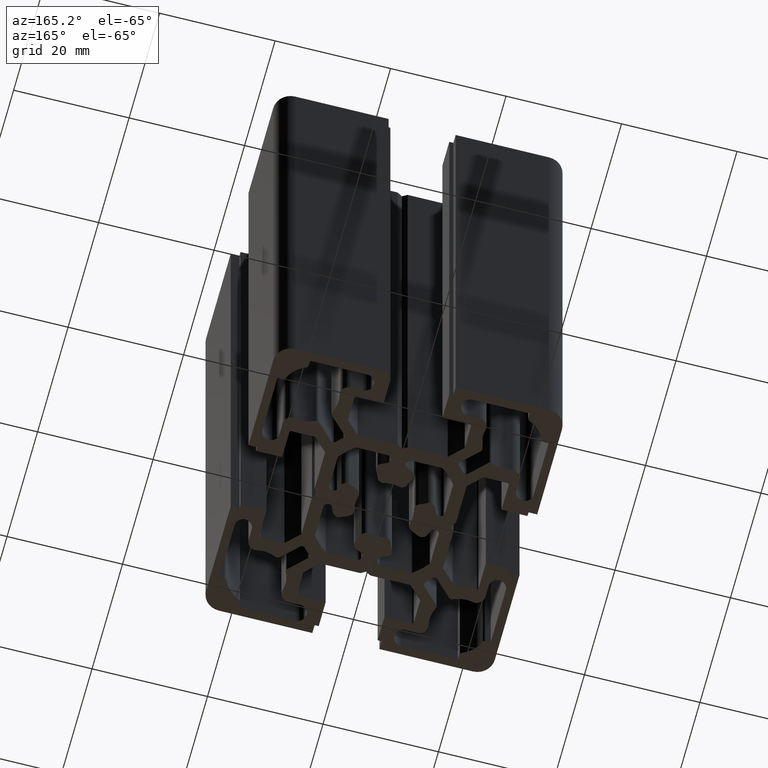
[diagram: clean part render]
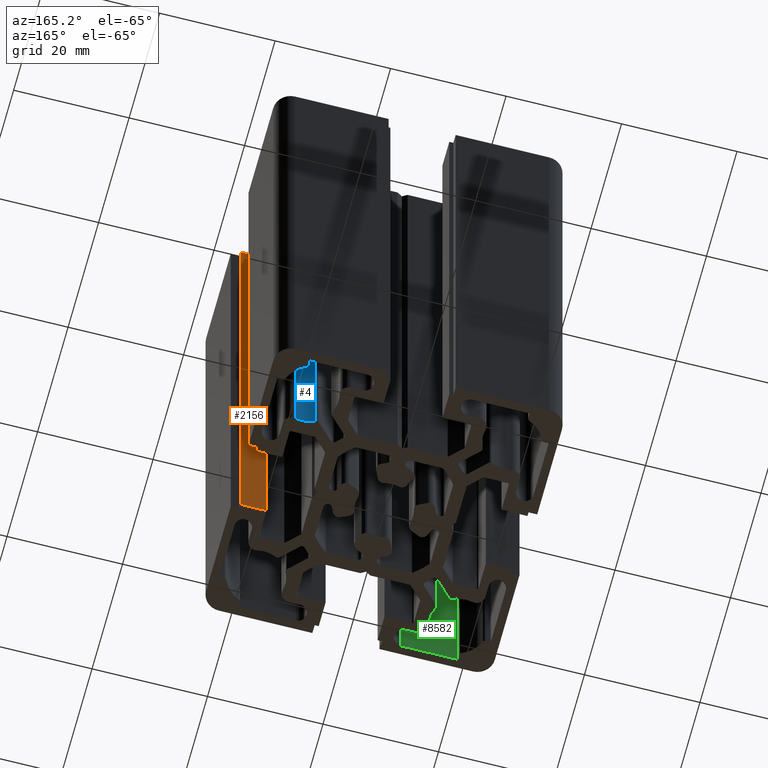
[diagram: same view with three faces highlighted in distinct colors, each labeled with its STEP entity id]
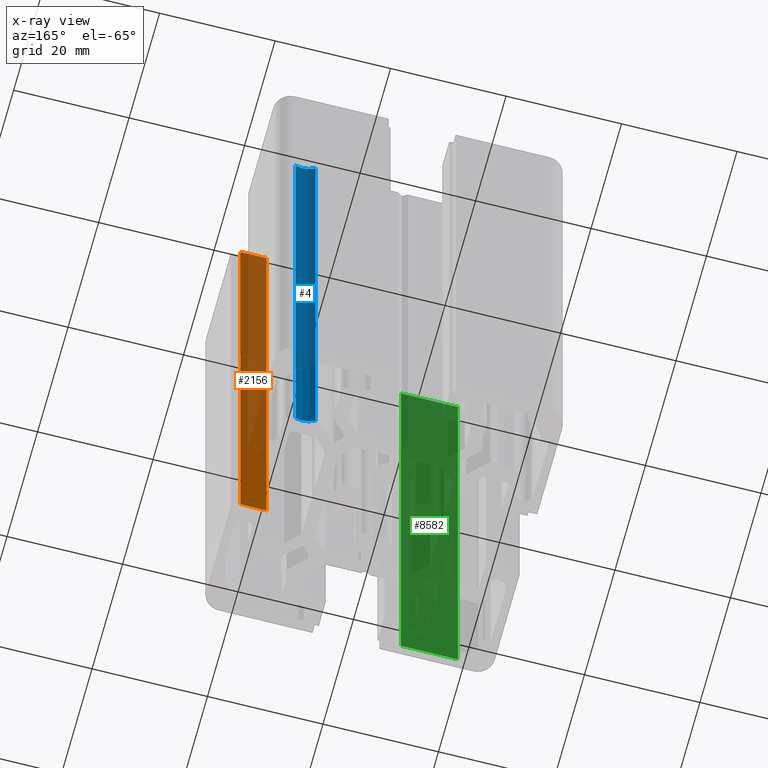
[diagram: x-ray of the same camera — body ghosted, the three highlighted faces saturated]
A machine part, auxiliary view with three faces highlighted in distinct colors.
The next image is the same camera in x-ray (body ghosted, the three faces saturated) — at least one of them is partly hidden behind the body in this view.
Their STEP definitions:

[orange] entity #2156 — the highlighted planar face has unit normal (-0, -1, 0).
#779 = VERTEX_POINT ( 'NONE', #4374 ) ;
#788 = EDGE_CURVE ( 'NONE', #789, #779, #4356, .T. ) ;
#789 = VERTEX_POINT ( 'NONE', #4358 ) ;
#1465 = VERTEX_POINT ( 'NONE', #5616 ) ;
#1520 = EDGE_CURVE ( 'NONE', #1465, #1528, #5689, .T. ) ;
#1528 = VERTEX_POINT ( 'NONE', #5692 ) ;
#2154 = EDGE_CURVE ( 'NONE', #779, #1528, #5795, .T. ) ;
#2155 = ORIENTED_EDGE ( 'NONE', *, *, #2154, .F. ) ;
#2156 = ADVANCED_FACE ( 'NONE', ( #6720 ), #6709, .F. ) ;
#2158 = ORIENTED_EDGE ( 'NONE', *, *, #1520, .T. ) ;
#2160 = ORIENTED_EDGE ( 'NONE', *, *, #2173, .T. ) ;
#2161 = ORIENTED_EDGE ( 'NONE', *, *, #788, .F. ) ;
#2173 = EDGE_CURVE ( 'NONE', #789, #1465, #6740, .T. ) ;
#2178 = EDGE_LOOP ( 'NONE', ( #2158, #2155, #2161, #2160 ) ) ;
#4353 = DIRECTION ( 'NONE',  ( -1.000000000000000000, 3.854941057726237600E-016, -0.0000000000000000000 ) ) ;
#4354 = VECTOR ( 'NONE', #4353, 1000.000000000000000 ) ;
#4355 = CARTESIAN_POINT ( 'NONE',  ( 19.00000000000000000, -5.099999999999999600, 100.0000000000000000 ) ) ;
#4356 = LINE ( 'NONE', #4355, #4354 ) ;
#4358 = CARTESIAN_POINT ( 'NONE',  ( 23.50000000000000000, -5.100000000000001400, 100.0000000000000000 ) ) ;
#4374 = CARTESIAN_POINT ( 'NONE',  ( 19.00000000000000000, -5.099999999999999600, 100.0000000000000000 ) ) ;
#5337 = DIRECTION ( 'NONE',  ( -3.854941057726238100E-016, -1.000000000000000000, 0.0000000000000000000 ) ) ;
#5351 = DIRECTION ( 'NONE',  ( 1.000000000000000000, -3.854941057726238100E-016, 0.0000000000000000000 ) ) ;
#5616 = CARTESIAN_POINT ( 'NONE',  ( 23.50000000000000000, -5.100000000000001400, 0.0000000000000000000 ) ) ;
#5683 = DIRECTION ( 'NONE',  ( -1.000000000000000000, 3.854941057726237600E-016, -0.0000000000000000000 ) ) ;
#5684 = VECTOR ( 'NONE', #5683, 1000.000000000000000 ) ;
#5685 = CARTESIAN_POINT ( 'NONE',  ( 19.00000000000000000, -5.099999999999999600, 0.0000000000000000000 ) ) ;
#5689 = LINE ( 'NONE', #5685, #5684 ) ;
#5692 = CARTESIAN_POINT ( 'NONE',  ( 19.00000000000000000, -5.099999999999999600, 0.0000000000000000000 ) ) ;
#5761 = CARTESIAN_POINT ( 'NONE',  ( 19.00000000000000000, -5.099999999999999600, 100.0000000000000000 ) ) ;
#5787 = VECTOR ( 'NONE', #5796, 1000.000000000000000 ) ;
#5795 = LINE ( 'NONE', #5761, #5787 ) ;
#5796 = DIRECTION ( 'NONE',  ( -0.0000000000000000000, -0.0000000000000000000, -1.000000000000000000 ) ) ;
#6704 = AXIS2_PLACEMENT_3D ( 'NONE', #6710, #5337, #5351 ) ;
#6709 = PLANE ( 'NONE',  #6704 ) ;
#6710 = CARTESIAN_POINT ( 'NONE',  ( 19.00000000000000000, -5.099999999999999600, 100.0000000000000000 ) ) ;
#6720 = FACE_OUTER_BOUND ( 'NONE', #2178, .T. ) ;
#6737 = DIRECTION ( 'NONE',  ( -0.0000000000000000000, -0.0000000000000000000, -1.000000000000000000 ) ) ;
#6738 = VECTOR ( 'NONE', #6737, 1000.000000000000000 ) ;
#6739 = CARTESIAN_POINT ( 'NONE',  ( 23.50000000000000000, -5.100000000000001400, 100.0000000000000000 ) ) ;
#6740 = LINE ( 'NONE', #6739, #6738 ) ;

[blue] entity #4 — the highlighted cylindrical surface (edge-blend (fillet) strip) has radius 5 mm, axis along (-0, -0, -1).
#4 = ADVANCED_FACE ( 'NONE', ( #3080 ), #3085, .F. ) ;
#7 = ORIENTED_EDGE ( 'NONE', *, *, #13, .T. ) ;
#13 = EDGE_CURVE ( 'NONE', #984, #1708, #94, .T. ) ;
#22 = ORIENTED_EDGE ( 'NONE', *, *, #980, .T. ) ;
#23 = ORIENTED_EDGE ( 'NONE', *, *, #1710, .F. ) ;
#92 = VECTOR ( 'NONE', #347, 1000.000000000000000 ) ;
#93 = CARTESIAN_POINT ( 'NONE',  ( 18.65384615384613200, 12.63495744589482900, 100.0000000000000000 ) ) ;
#94 = LINE ( 'NONE', #93, #92 ) ;
#170 = ORIENTED_EDGE ( 'NONE', *, *, #172, .F. ) ;
#171 = EDGE_LOOP ( 'NONE', ( #23, #170, #22, #7 ) ) ;
#172 = EDGE_CURVE ( 'NONE', #982, #1680, #3314, .T. ) ;
#347 = DIRECTION ( 'NONE',  ( -0.0000000000000000000, -0.0000000000000000000, -1.000000000000000000 ) ) ;
#980 = EDGE_CURVE ( 'NONE', #982, #984, #4704, .T. ) ;
#982 = VERTEX_POINT ( 'NONE', #4699 ) ;
#984 = VERTEX_POINT ( 'NONE', #4705 ) ;
#1680 = VERTEX_POINT ( 'NONE', #5975 ) ;
#1708 = VERTEX_POINT ( 'NONE', #5993 ) ;
#1710 = EDGE_CURVE ( 'NONE', #1680, #1708, #5987, .T. ) ;
#3070 = DIRECTION ( 'NONE',  ( -1.000000000000000000, 0.0000000000000000000, 0.0000000000000000000 ) ) ;
#3075 = DIRECTION ( 'NONE',  ( -0.0000000000000000000, -0.0000000000000000000, -1.000000000000000000 ) ) ;
#3080 = FACE_OUTER_BOUND ( 'NONE', #171, .T. ) ;
#3082 = AXIS2_PLACEMENT_3D ( 'NONE', #3084, #3075, #3070 ) ;
#3084 = CARTESIAN_POINT ( 'NONE',  ( 17.49999999999997500, 17.50000000000002500, 100.0000000000000000 ) ) ;
#3085 = CYLINDRICAL_SURFACE ( 'NONE', #3082, 4.999999999999999100 ) ;
#3306 = DIRECTION ( 'NONE',  ( -0.0000000000000000000, -0.0000000000000000000, -1.000000000000000000 ) ) ;
#3307 = VECTOR ( 'NONE', #3306, 1000.000000000000000 ) ;
#3308 = CARTESIAN_POINT ( 'NONE',  ( 15.27315158361268000, 13.02326613138181300, 100.0000000000000000 ) ) ;
#3314 = LINE ( 'NONE', #3308, #3307 ) ;
#4699 = CARTESIAN_POINT ( 'NONE',  ( 15.27315158361268000, 13.02326613138181300, 100.0000000000000000 ) ) ;
#4700 = DIRECTION ( 'NONE',  ( 1.000000000000000000, 0.0000000000000000000, 0.0000000000000000000 ) ) ;
#4701 = DIRECTION ( 'NONE',  ( 0.0000000000000000000, 0.0000000000000000000, 1.000000000000000000 ) ) ;
#4702 = CARTESIAN_POINT ( 'NONE',  ( 17.49999999999997500, 17.50000000000002500, 100.0000000000000000 ) ) ;
#4703 = AXIS2_PLACEMENT_3D ( 'NONE', #4702, #4701, #4700 ) ;
#4704 = CIRCLE ( 'NONE', #4703, 4.999999999999997300 ) ;
#4705 = CARTESIAN_POINT ( 'NONE',  ( 18.65384615384613200, 12.63495744589482900, 100.0000000000000000 ) ) ;
#5975 = CARTESIAN_POINT ( 'NONE',  ( 15.27315158361268000, 13.02326613138181300, 0.0000000000000000000 ) ) ;
#5987 = CIRCLE ( 'NONE', #6039, 4.999999999999997300 ) ;
#5993 = CARTESIAN_POINT ( 'NONE',  ( 18.65384615384613200, 12.63495744589482900, 0.0000000000000000000 ) ) ;
#6036 = DIRECTION ( 'NONE',  ( 1.000000000000000000, 0.0000000000000000000, 0.0000000000000000000 ) ) ;
#6037 = DIRECTION ( 'NONE',  ( 0.0000000000000000000, 0.0000000000000000000, 1.000000000000000000 ) ) ;
#6038 = CARTESIAN_POINT ( 'NONE',  ( 17.49999999999997500, 17.50000000000002500, 0.0000000000000000000 ) ) ;
#6039 = AXIS2_PLACEMENT_3D ( 'NONE', #6038, #6037, #6036 ) ;

[green] entity #8582 — the highlighted planar face has unit normal (0, 1, -0).
#678 = EDGE_CURVE ( 'NONE', #696, #693, #4207, .T. ) ;
#693 = VERTEX_POINT ( 'NONE', #4188 ) ;
#696 = VERTEX_POINT ( 'NONE', #4226 ) ;
#1142 = VERTEX_POINT ( 'NONE', #4973 ) ;
#1145 = VERTEX_POINT ( 'NONE', #4972 ) ;
#1153 = EDGE_CURVE ( 'NONE', #1142, #1145, #5013, .T. ) ;
#4188 = CARTESIAN_POINT ( 'NONE',  ( -9.099999999999997900, -23.50000000000000000, 100.0000000000000000 ) ) ;
#4200 = DIRECTION ( 'NONE',  ( 1.000000000000000000, -0.0000000000000000000, -0.0000000000000000000 ) ) ;
#4201 = VECTOR ( 'NONE', #4200, 1000.000000000000000 ) ;
#4202 = CARTESIAN_POINT ( 'NONE',  ( -9.099999999999997900, -23.50000000000000000, 100.0000000000000000 ) ) ;
#4207 = LINE ( 'NONE', #4202, #4201 ) ;
#4226 = CARTESIAN_POINT ( 'NONE',  ( -19.00000000000000000, -23.50000000000000000, 100.0000000000000000 ) ) ;
#4972 = CARTESIAN_POINT ( 'NONE',  ( -9.099999999999997900, -23.50000000000000000, 0.0000000000000000000 ) ) ;
#4973 = CARTESIAN_POINT ( 'NONE',  ( -19.00000000000000000, -23.50000000000000000, 0.0000000000000000000 ) ) ;
#5001 = DIRECTION ( 'NONE',  ( 1.000000000000000000, -0.0000000000000000000, -0.0000000000000000000 ) ) ;
#5002 = VECTOR ( 'NONE', #5001, 1000.000000000000000 ) ;
#5003 = CARTESIAN_POINT ( 'NONE',  ( -9.099999999999997900, -23.50000000000000000, 0.0000000000000000000 ) ) ;
#5013 = LINE ( 'NONE', #5003, #5002 ) ;
#8184 = FACE_OUTER_BOUND ( 'NONE', #8580, .T. ) ;
#8211 = DIRECTION ( 'NONE',  ( 0.0000000000000000000, 0.0000000000000000000, 1.000000000000000000 ) ) ;
#8212 = DIRECTION ( 'NONE',  ( 0.0000000000000000000, 1.000000000000000000, -0.0000000000000000000 ) ) ;
#8213 = CARTESIAN_POINT ( 'NONE',  ( -9.099999999999997900, -23.50000000000000000, 100.0000000000000000 ) ) ;
#8222 = AXIS2_PLACEMENT_3D ( 'NONE', #8213, #8212, #8211 ) ;
#8229 = PLANE ( 'NONE',  #8222 ) ;
#8241 = DIRECTION ( 'NONE',  ( -0.0000000000000000000, -0.0000000000000000000, -1.000000000000000000 ) ) ;
#8242 = VECTOR ( 'NONE', #8241, 1000.000000000000000 ) ;
#8243 = CARTESIAN_POINT ( 'NONE',  ( -9.099999999999997900, -23.50000000000000000, 100.0000000000000000 ) ) ;
#8244 = LINE ( 'NONE', #8243, #8242 ) ;
#8263 = DIRECTION ( 'NONE',  ( -0.0000000000000000000, -0.0000000000000000000, -1.000000000000000000 ) ) ;
#8264 = VECTOR ( 'NONE', #8263, 1000.000000000000000 ) ;
#8265 = CARTESIAN_POINT ( 'NONE',  ( -19.00000000000000000, -23.50000000000000000, 100.0000000000000000 ) ) ;
#8266 = LINE ( 'NONE', #8265, #8264 ) ;
#8538 = ORIENTED_EDGE ( 'NONE', *, *, #1153, .F. ) ;
#8554 = ORIENTED_EDGE ( 'NONE', *, *, #8600, .T. ) ;
#8580 = EDGE_LOOP ( 'NONE', ( #8538, #8598, #8597, #8554 ) ) ;
#8582 = ADVANCED_FACE ( 'NONE', ( #8184 ), #8229, .T. ) ;
#8587 = EDGE_CURVE ( 'NONE', #696, #1142, #8266, .T. ) ;
#8597 = ORIENTED_EDGE ( 'NONE', *, *, #678, .T. ) ;
#8598 = ORIENTED_EDGE ( 'NONE', *, *, #8587, .F. ) ;
#8600 = EDGE_CURVE ( 'NONE', #693, #1145, #8244, .T. ) ;